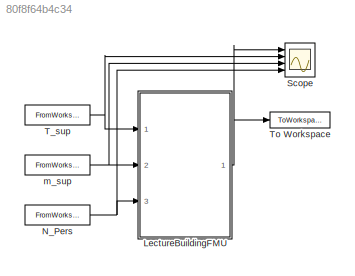
MODEL slx_80f8f64b4c34
KIND model
CONFIG AbsTol = auto
CONFIG EnableMultiTasking = off
CONFIG FixedStep = 1
CONFIG MaxStep = 3600
CONFIG MinStep = auto
CONFIG RelTol = 1e-3
CONFIG SampleTimeConstraint = Unconstrained
CONFIG SolverName = ode45
CONFIG StartTime = 0.0
CONFIG StopTime = 3600*24
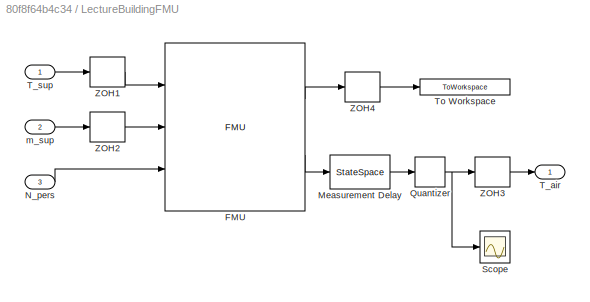
BLOCK [SubSystem] LectureBuildingFMU
  Ports = [3, 1]
  RequestExecContextInheritance = off
BLOCK [FMU] LectureBuildingFMU/FMU
  AW = struct('absIR_a',0.9,'absIR_b',0.9,'absSol_a',0.5,'absSol_b',0.5,'roughness_a',int32(3))
  BodenPlatte = struct('T_a_start',293.15,'T_b_start',293.15)
  FB = struct('absIR_a',0.9,'absIR_b',0.9,'absSol_a',0.5,'absSol_b',0.5,'roughness_a',int32(3))
  FE = struct('glass',[struct('x',0.003,'k',1.0,'tauSol',[0.834],'rhoSol_a',[0.075],'rhoSol_b',[0.075],'tauIR',0.0,'absIR_a',0.84,'absIR_b',0.84),struct('x',0.003,'k',1.0,'tauSol',[0.834],'rhoSol_a',[0.075],'rhoSol_b',[0.075],'tauIR',0.0,'absIR_a',0.84,'absIR_b',0.84)],'gas',[struct('x',0.0127,'a_k',0.002873,'b_k',7.76E-05,'a_mu',3.723E-06,'b_mu',4.94E-08,'a_c',1002.737,'b_c',0.012324,'MM',0.02897,'P0',1...<+182ch>
  FMUDebugLogging = on
  FMUMode = ModelExchange
  FMUName = LecBuilding.fmu
  Flur = struct('lat',0.91664692314742,'conExtWin',[struct('glaSys',struct('haveControllableWindow',boolean(false)),'win',struct('glaUns',struct('glass',[struct('T0',293.15),struct('T0',293.15)],'gas',[struct('T0',293.15)]))),struct('glaSys',struct('haveControllableWindow',boolean(false)),'win',struct('glaUns',struct('glass',[struct('T0',293.15),struct('T0',293.15)],'gas',[struct('T0',293.15)])))],'hIntFix...<+495ch>
  Hs1 = struct('lat',0.91664692314742,'conExtWin',[struct('glaSys',struct('haveControllableWindow',boolean(false)),'win',struct('glaUns',struct('glass',[struct('T0',293.15),struct('T0',293.15)],'gas',[struct('T0',293.15)])))],'hIntFixed',3.0,'hExtFixed',10.0,'bouConExt',struct('HDifTil',[struct('rho',0.2,'add',struct('k1',1,'k2',1)),struct('rho',0.2,'add',struct('k1',1,'k2',1))]),'bouConExtWin',struct('co...<+229ch>
  Hs2 = struct('lat',0.91664692314742,'conExtWin',[struct('glaSys',struct('haveControllableWindow',boolean(false)),'win',struct('glaUns',struct('glass',[struct('T0',293.15),struct('T0',293.15)],'gas',[struct('T0',293.15)])))],'hIntFixed',3.0,'hExtFixed',10.0,'bouConExt',struct('HDifTil',[struct('rho',0.2,'add',struct('k1',1,'k2',1)),struct('rho',0.2,'add',struct('k1',1,'k2',1))]),'bouConExtWin',struct('co...<+229ch>
  Hs3 = struct('lat',0.91664692314742,'conExtWin',[struct('glaSys',struct('haveControllableWindow',boolean(false)),'win',struct('glaUns',struct('glass',[struct('T0',293.15),struct('T0',293.15)],'gas',[struct('T0',293.15)])))],'hIntFixed',3.0,'hExtFixed',10.0,'bouConExt',struct('HDifTil',[struct('rho',0.2,'add',struct('k1',1,'k2',1)),struct('rho',0.2,'add',struct('k1',1,'k2',1))]),'bouConExtWin',struct('co...<+229ch>
  Hs4 = struct('lat',0.91664692314742,'conExtWin',[struct('glaSys',struct('haveControllableWindow',boolean(false)),'win',struct('glaUns',struct('glass',[struct('T0',293.15),struct('T0',293.15)],'gas',[struct('T0',293.15)])))],'hIntFixed',3.0,'hExtFixed',10.0,'bouConExt',struct('HDifTil',[struct('rho',0.2,'add',struct('k1',1,'k2',1)),struct('rho',0.2,'add',struct('k1',1,'k2',1))]),'bouConExtWin',struct('co...<+229ch>
  IW = struct('absIR_a',0.9,'absIR_b',0.9,'absSol_a',0.5,'absSol_b',0.5,'roughness_a',int32(3))
  MaskDisplay = disp('LecBuilding');\nport_label('output',1,'weaBus');\nport_label('output',2,'T_air');\nport_label('input',1,'T_Sup');\nport_label('input',2,'M_Sup');\nport_label('input',3,'N_Pers');
  MaskPromptString = h_room|l_room|w_room|h_win|w_win|Q_occ_radRadiant Heat per person [W]|Q_occ_convConvective Heat per person [W]|Q_occ_latLatent Heat per person [W]|FE|Hs1|Flur|Hs2|Hs3|Hs4|weaDat|Zul1|Zul2|Zul3|Zul4|T_ZulToK|FB|IW|BodenPlatte|bouPres|AW|gai1
  MaskType = LecBuilding [Model Exchange, v2.0]
  MultiThreadCoSim = off
  Ports = [3, 2]
  Q_occ_conv = 25
  Q_occ_lat = 0
  Q_occ_rad = 75
  T_ZulToK = struct('k1',1,'k2',1)
  Zul1 = struct('X_2',[0.01,0.99],'m_flow',2,'T',293.15)
  Zul2 = struct('X_2',[0.01,0.99],'m_flow',2,'T',293.15)
  Zul3 = struct('X_2',[0.01,0.99],'m_flow',1.5,'T',293.15)
  Zul4 = struct('X_2',[0.01,0.99],'m_flow',1.5,'T',293.15)
  bouPres = struct('X_2',[0.01,0.99],'p',100000,'T',293.15)
  gai1 = struct('K_2',reshape([0,0,0], [3,1]))
  h_room = [8,8,8,8,8]
  h_win = [3,3,3,3,5]
  l_room = [30,30,20,20,50]
  w_room = [20,20,20,20,10]
  w_win = [25,25,15,15,10]
  weaDat = struct('pAtm',101325,'TDryBul',293.15,'TDewPoi',283.15,'TBlaSky',273.15,'relHum',0.5,'winSpe',1,'winDir',1.0,'HInfHor',0.0,'ceiHei',20000,'totSkyCov',0.5,'opaSkyCov',0.5)
BLOCK [StateSpace] LectureBuildingFMU/Measurement Delay
  A = -eye(5)./(P.T_sens*60)
  B = eye(5)./(P.T_sens*60)
  C = eye(5)
  D = zeros(5)
  InitialCondition = 20*ones(5,1)
  Ports = [1, 1]
BLOCK [Inport] LectureBuildingFMU/N_pers
  Port = 3
BLOCK [Quantizer] LectureBuildingFMU/Quantizer
  QuantizationInterval = P.Q_int
BLOCK [Scope] LectureBuildingFMU/Scope
  Floating = off
  NumInputPorts = 1
  Ports = [1]
  ScopeSpecificationString = Simulink.scopes.TimeScopeBlockCfg('CurrentConfiguration', extmgr.ConfigurationSet(extmgr.Configuration('Core','General UI',true),extmgr.Configuration('Core','Source UI',true),extmgr.Configuration('Sources','WiredSimulink',true,'DataLoggingVariableName','ScopeData1'),extmgr.Configuration('Visuals','Time Domain',true,'SerializedDisplays',{struct('MinYLimReal','19.07011','MaxYLimReal','24.23561','YLa...<+1414ch>
BLOCK [Outport] LectureBuildingFMU/T_air
BLOCK [Inport] LectureBuildingFMU/T_sup
BLOCK [ToWorkspace] LectureBuildingFMU/To Workspace
  FixptAsFi = on
  MaxDataPoints = inf
  Ports = [1]
  SampleTime = P.T_s*60
  SaveFormat = Timeseries
  VariableName = Weather
BLOCK [ZeroOrderHold] LectureBuildingFMU/ZOH1
  SampleTime = P.T_s*60
BLOCK [ZeroOrderHold] LectureBuildingFMU/ZOH2
  SampleTime = P.T_s*60
BLOCK [ZeroOrderHold] LectureBuildingFMU/ZOH3
  SampleTime = P.T_s*60
BLOCK [ZeroOrderHold] LectureBuildingFMU/ZOH4
  SampleTime = P.T_s*60
BLOCK [Inport] LectureBuildingFMU/m_sup
  Port = 2
BLOCK [FromWorkspace] N_Pers
  OutDataTypeStr = double
  SampleTime = P.T_s*60
  VariableName = In.N_pers
BLOCK [Scope] Scope
  Floating = off
  NumInputPorts = 4
  Ports = [4]
  ScopeSpecificationString = Simulink.scopes.TimeScopeBlockCfg('CurrentConfiguration', extmgr.ConfigurationSet(extmgr.Configuration('Core','General UI',true),extmgr.Configuration('Core','Source UI',true),extmgr.Configuration('Sources','WiredSimulink',true),extmgr.Configuration('Visuals','Time Domain',true,'SerializedDisplays',{struct('MinYLimReal','16.2875','MaxYLimReal','27.4125','YLabelReal','','MinYLimMag','16.2875','MaxYL...<+3517ch>
BLOCK [FromWorkspace] T_sup
  OutDataTypeStr = double
  SampleTime = P.T_s*60
  VariableName = In.T_sup
BLOCK [ToWorkspace] To Workspace
  FixptAsFi = on
  MaxDataPoints = inf
  Ports = [1]
  SampleTime = P.T_s*60
  SaveFormat = Timeseries
  VariableName = T_air
BLOCK [FromWorkspace] m_sup
  OutDataTypeStr = double
  SampleTime = P.T_s*60
  VariableName = In.m_sup
LINE LectureBuildingFMU/FMU:1 -> LectureBuildingFMU/ZOH4:1
LINE LectureBuildingFMU/FMU:2 -> LectureBuildingFMU/Measurement Delay:1
LINE LectureBuildingFMU/Measurement Delay:1 -> LectureBuildingFMU/Quantizer:1
LINE LectureBuildingFMU/N_pers:1 -> LectureBuildingFMU/FMU:3
NET LectureBuildingFMU/Quantizer:1 -> LectureBuildingFMU/Scope:1, LectureBuildingFMU/ZOH3:1
LINE LectureBuildingFMU/T_sup:1 -> LectureBuildingFMU/ZOH1:1
LINE LectureBuildingFMU/ZOH1:1 -> LectureBuildingFMU/FMU:1
LINE LectureBuildingFMU/ZOH2:1 -> LectureBuildingFMU/FMU:2
LINE LectureBuildingFMU/ZOH3:1 -> LectureBuildingFMU/T_air:1
LINE LectureBuildingFMU/ZOH4:1 -> LectureBuildingFMU/To Workspace:1
LINE LectureBuildingFMU/m_sup:1 -> LectureBuildingFMU/ZOH2:1
NET LectureBuildingFMU:1 -> Scope:1, To Workspace:1
NET N_Pers:1 -> LectureBuildingFMU:3, Scope:4
NET T_sup:1 -> LectureBuildingFMU:1, Scope:2
NET m_sup:1 -> LectureBuildingFMU:2, Scope:3
note: NET lines group one-source signal fan-out (src -> all destinations, sorted); 1:1 wires keep LINE
